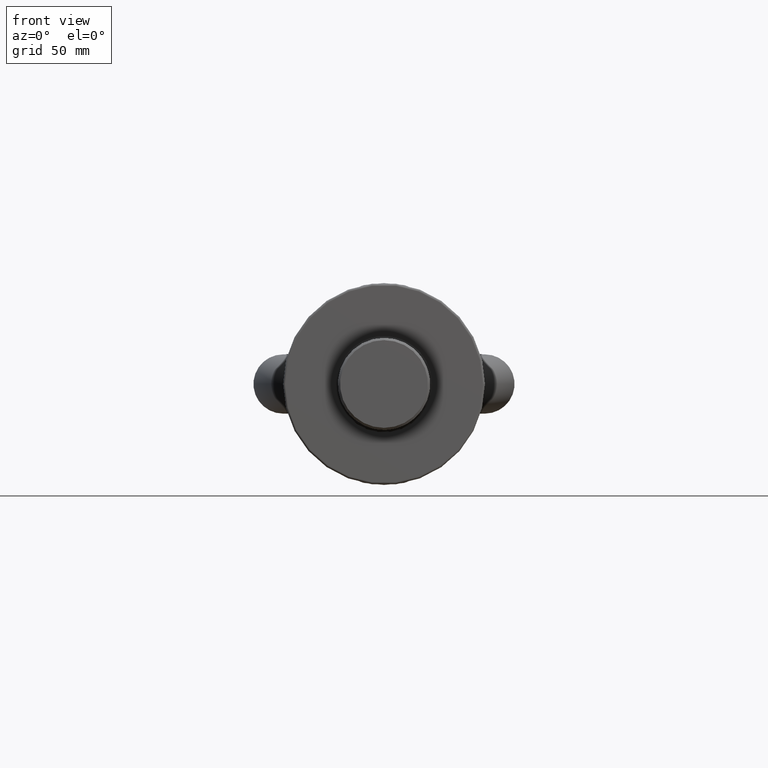
[diagram: clean part render]
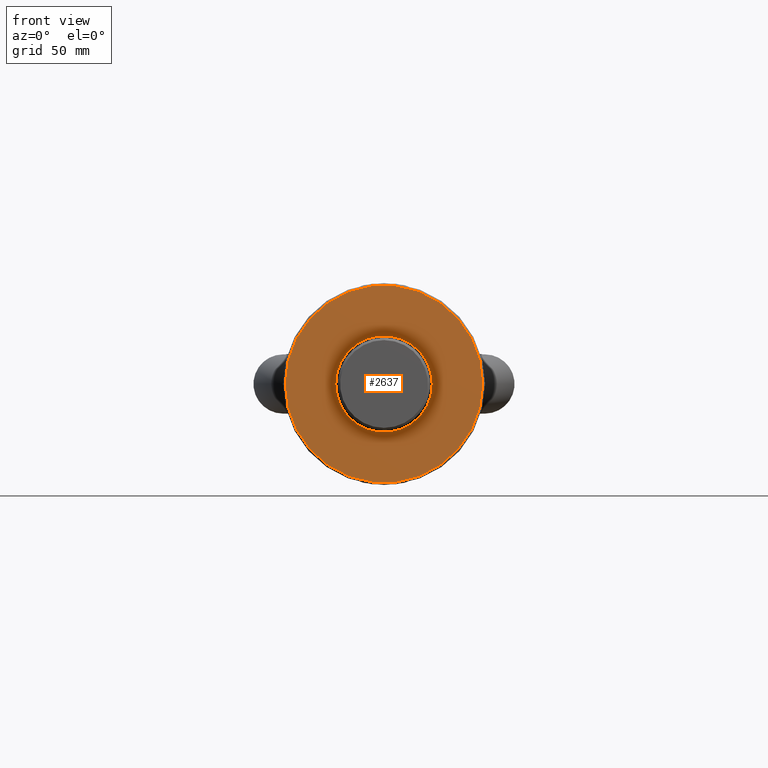
[diagram: same view with one face highlighted and labeled with its STEP entity id]
A machine part, front view. The second image highlights one B-rep face of the part: STEP entity #2637.
In plain terms, the highlighted planar face has unit normal (0, -1, 0).
Its self-contained STEP definition (entity closure, byte-faithful):
#2637=ADVANCED_FACE('',(#2985,#2986),#2880,.T.);
#2880=PLANE('',#5598);
#2985=FACE_BOUND('',#3057,.T.);
#2986=FACE_BOUND('',#3058,.T.);
#3057=EDGE_LOOP('',(#3343));
#3058=EDGE_LOOP('',(#3344));
#3343=ORIENTED_EDGE('',*,*,#4933,.T.);
#3344=ORIENTED_EDGE('',*,*,#4934,.T.);
#4535=VERTEX_POINT('',#6563);
#4536=VERTEX_POINT('',#6565);
#4933=EDGE_CURVE('',#4535,#4535,#5529,.T.);
#4934=EDGE_CURVE('',#4536,#4536,#5530,.T.);
#5529=CIRCLE('',#5596,22.);
#5530=CIRCLE('',#5597,45.);
#5596=AXIS2_PLACEMENT_3D('',#6562,#5803,#5804);
#5597=AXIS2_PLACEMENT_3D('',#6564,#5805,#5806);
#5598=AXIS2_PLACEMENT_3D('',#6566,#5807,#5808);
#5803=DIRECTION('',(-4.81111242522174E-17,1.,0.));
#5804=DIRECTION('',(1.,4.81111242522174E-17,0.));
#5805=DIRECTION('',(4.81111242522174E-17,-1.,0.));
#5806=DIRECTION('',(1.,4.81111242522174E-17,0.));
#5807=DIRECTION('',(4.81111242522174E-17,-1.,0.));
#5808=DIRECTION('',(1.,4.81111242522174E-17,0.));
#6562=CARTESIAN_POINT('',(-4.81111242522174E-17,-1.0842021724855E-15,0.));
#6563=CARTESIAN_POINT('',(22.,-2.57574389367206E-17,0.));
#6564=CARTESIAN_POINT('',(8.42594350669416E-32,-1.0842021724855E-15,0.));
#6565=CARTESIAN_POINT('',(45.,1.08079841886428E-15,0.));
#6566=CARTESIAN_POINT('',(5.3237646366683E-32,-1.106555857801E-15,0.));